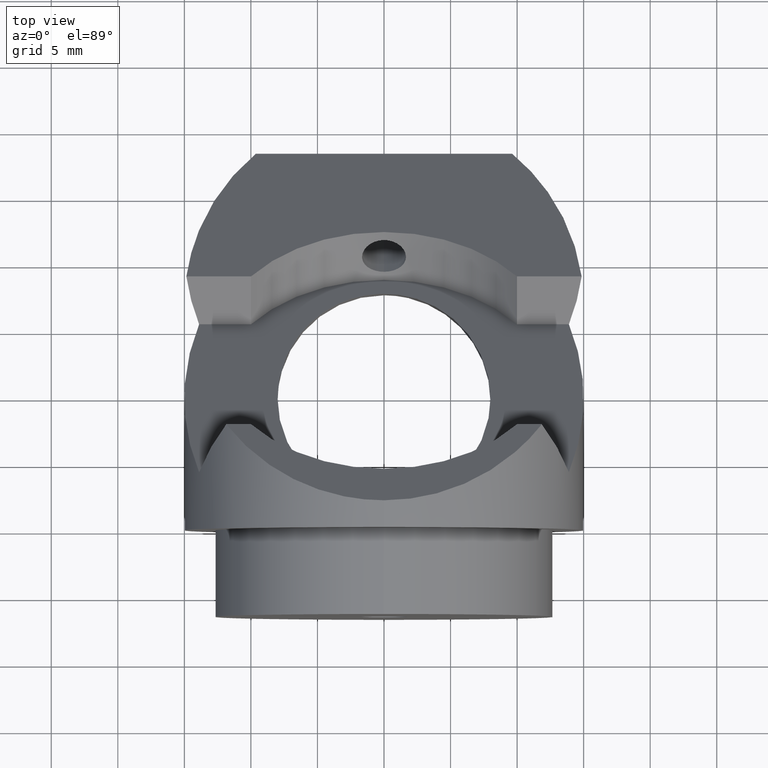
[diagram: clean part render]
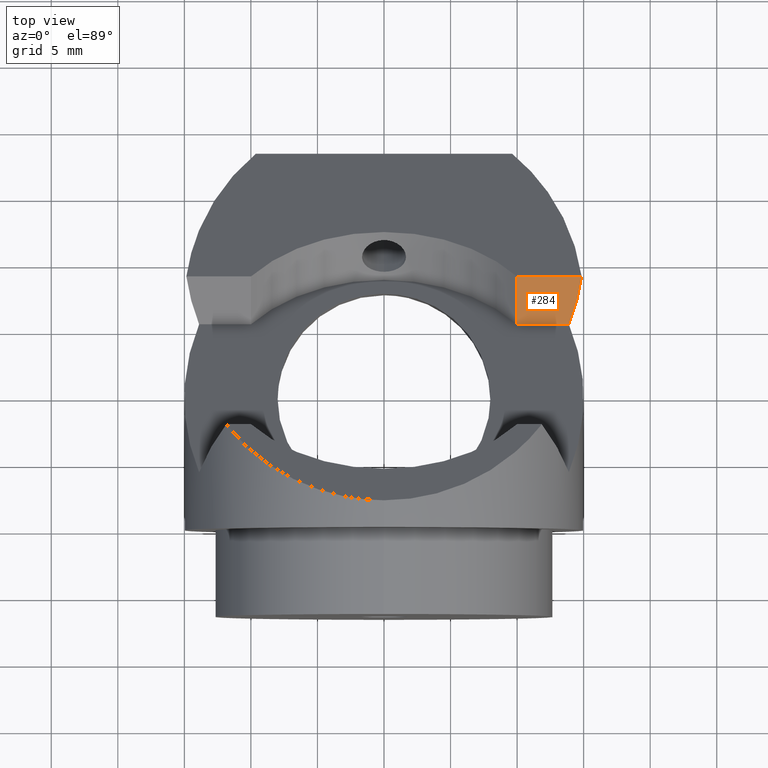
[diagram: same view with one face highlighted and labeled with its STEP entity id]
A machine part, top view. The second image highlights one B-rep face of the part: STEP entity #284.
In plain terms, the highlighted planar face has unit normal (0, -0.7071, 0.7071).
Its self-contained STEP definition (entity closure, byte-faithful):
#49 = EDGE_CURVE ( 'NONE', #187, #240, #492, .T. ) ;
#97 = ORIENTED_EDGE ( 'NONE', *, *, #422, .F. ) ;
#130 = FACE_OUTER_BOUND ( 'NONE', #265, .T. ) ;
#142 = CARTESIAN_POINT ( 'NONE',  ( 9.991996797437567000, 19.12132034355941100, -2.121320343559590900 ) ) ;
#158 = DIRECTION ( 'NONE',  ( 0.0000000000000000000, -0.7071067811865475700, -0.7071067811865474600 ) ) ;
#161 = CARTESIAN_POINT ( 'NONE',  ( 14.67571503868612700, 17.90662877993972300, -3.336011907179273100 ) ) ;
#187 = VERTEX_POINT ( 'NONE', #920 ) ;
#240 = VERTEX_POINT ( 'NONE', #142 ) ;
#252 = ORIENTED_EDGE ( 'NONE', *, *, #797, .T. ) ;
#265 = EDGE_LOOP ( 'NONE', ( #285, #252, #97, #800 ) ) ;
#284 = ADVANCED_FACE ( 'NONE', ( #130 ), #548, .T. ) ;
#285 = ORIENTED_EDGE ( 'NONE', *, *, #49, .T. ) ;
#388 = CARTESIAN_POINT ( 'NONE',  ( 9.991996797437542100, 24.26402075175977300, 3.021380064640720500 ) ) ;
#418 = DIRECTION ( 'NONE',  ( 0.0000000000000000000, -0.7071067811865506800, -0.7071067811865443500 ) ) ;
#422 = EDGE_CURVE ( 'NONE', #731, #489, #501, .T. ) ;
#449 = AXIS2_PLACEMENT_3D ( 'NONE', #512, #596, #418 ) ;
#477 = CARTESIAN_POINT ( 'NONE',  ( 14.35518363273350100, 16.72221037440977700, -4.520430312709208900 ) ) ;
#487 = VECTOR ( 'NONE', #158, 1000.000000000000000 ) ;
#489 = VERTEX_POINT ( 'NONE', #1005 ) ;
#492 = LINE ( 'NONE', #982, #654 ) ;
#501 = LINE ( 'NONE', #644, #733 ) ;
#512 = CARTESIAN_POINT ( 'NONE',  ( 80.54744331758767800, 15.58578643762660000, -5.656854249492376100 ) ) ;
#548 = PLANE ( 'NONE',  #449 ) ;
#563 = CARTESIAN_POINT ( 'NONE',  ( 14.84924240491755600, 19.12132034355941500, -2.121320343559593500 ) ) ;
#596 = DIRECTION ( 'NONE',  ( 0.0000000000000000000, -0.7071067811865443500, 0.7071067811865506800 ) ) ;
#605 = DIRECTION ( 'NONE',  ( -1.000000000000000000, 0.0000000000000000000, 0.0000000000000000000 ) ) ;
#644 = CARTESIAN_POINT ( 'NONE',  ( 80.54744331758767800, 15.58578643762660000, -5.656854249492376100 ) ) ;
#654 = VECTOR ( 'NONE', #605, 1000.000000000000000 ) ;
#659 = LINE ( 'NONE', #388, #487 ) ;
#674 =( BOUNDED_CURVE ( )  B_SPLINE_CURVE ( 3, ( #799, #477, #161, #563 ),
 .UNSPECIFIED., .F., .F. ) 
 B_SPLINE_CURVE_WITH_KNOTS ( ( 4, 4 ),
 ( 1.184107700639096800, 1.428899272190736500 ),
 .UNSPECIFIED. ) 
 CURVE ( )  GEOMETRIC_REPRESENTATION_ITEM ( )  RATIONAL_B_SPLINE_CURVE ( ( 1.000000000000000000, 0.9950126547132646100, 0.9950126547132646100, 1.000000000000000000 ) ) 
 REPRESENTATION_ITEM ( '' )  );
#731 = VERTEX_POINT ( 'NONE', #940 ) ;
#733 = VECTOR ( 'NONE', #958, 1000.000000000000000 ) ;
#749 = EDGE_CURVE ( 'NONE', #731, #187, #674, .T. ) ;
#797 = EDGE_CURVE ( 'NONE', #240, #489, #659, .T. ) ;
#799 = CARTESIAN_POINT ( 'NONE',  ( 13.89244398944984700, 15.58578643762660000, -5.656854249492376100 ) ) ;
#800 = ORIENTED_EDGE ( 'NONE', *, *, #749, .T. ) ;
#920 = CARTESIAN_POINT ( 'NONE',  ( 14.84924240491755600, 19.12132034355941500, -2.121320343559593500 ) ) ;
#940 = CARTESIAN_POINT ( 'NONE',  ( 13.89244398944984700, 15.58578643762660000, -5.656854249492376100 ) ) ;
#958 = DIRECTION ( 'NONE',  ( -1.000000000000000000, 0.0000000000000000000, 0.0000000000000000000 ) ) ;
#982 = CARTESIAN_POINT ( 'NONE',  ( 80.54744331758767800, 19.12132034355941500, -2.121320343559593500 ) ) ;
#1005 = CARTESIAN_POINT ( 'NONE',  ( 9.991996797437581200, 15.58578643762672100, -5.656854249492256200 ) ) ;